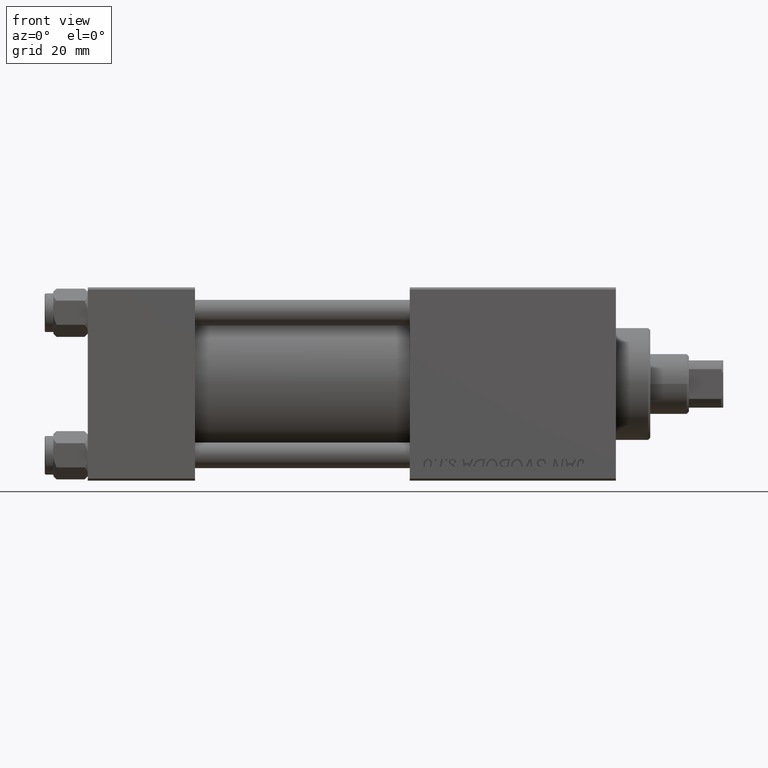
[diagram: clean part render]
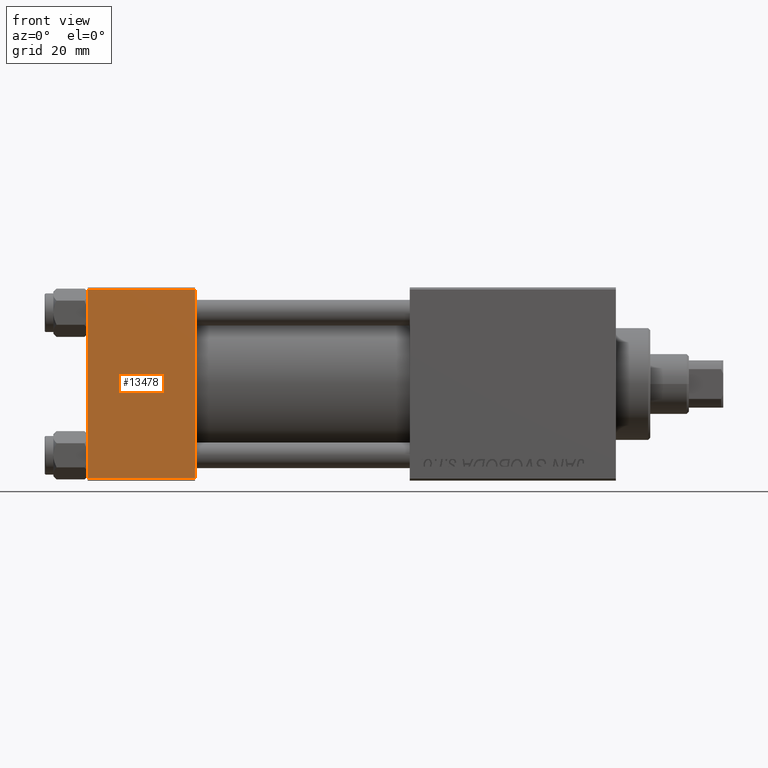
[diagram: same view with one face highlighted and labeled with its STEP entity id]
A machine part, front view. The second image highlights one B-rep face of the part: STEP entity #13478.
In plain terms, the highlighted planar face has unit normal (0, 1, 0).
Its self-contained STEP definition (entity closure, byte-faithful):
#27 = EDGE_CURVE ( 'NONE', #39036, #49846, #25813, .T. ) ;
#1740 = ORIENTED_EDGE ( 'NONE', *, *, #27, .T. ) ;
#2477 = VERTEX_POINT ( 'NONE', #43573 ) ;
#2906 = CARTESIAN_POINT ( 'NONE',  ( 25.00000000000000000, -22.50000000000000000, -21.99999999999998579 ) ) ;
#4102 = VECTOR ( 'NONE', #33981, 1000.000000000000000 ) ;
#4126 = LINE ( 'NONE', #18875, #27492 ) ;
#5416 = ORIENTED_EDGE ( 'NONE', *, *, #38959, .T. ) ;
#5588 = AXIS2_PLACEMENT_3D ( 'NONE', #15005, #38946, #30317 ) ;
#6017 = ORIENTED_EDGE ( 'NONE', *, *, #7852, .F. ) ;
#6522 = EDGE_CURVE ( 'NONE', #2477, #39036, #42817, .T. ) ;
#7852 = EDGE_CURVE ( 'NONE', #27355, #49846, #4126, .T. ) ;
#11505 = CARTESIAN_POINT ( 'NONE',  ( 0.000000000000000000, -22.50000000000000000, 22.50000000000000000 ) ) ;
#13478 = ADVANCED_FACE ( 'NONE', ( #22643 ), #38197, .F. ) ;
#13950 = CARTESIAN_POINT ( 'NONE',  ( 25.00000000000000000, -22.50000000000000000, 22.00000000000000000 ) ) ;
#15005 = CARTESIAN_POINT ( 'NONE',  ( 25.00000000000000000, -22.50000000000000000, 22.50000000000000000 ) ) ;
#17234 = CARTESIAN_POINT ( 'NONE',  ( 25.00000000000000000, -22.50000000000000000, -21.99999999999997158 ) ) ;
#18875 = CARTESIAN_POINT ( 'NONE',  ( 25.00000000000000000, -22.50000000000000000, 22.50000000000000000 ) ) ;
#19380 = DIRECTION ( 'NONE',  ( 0.000000000000000000, 0.000000000000000000, -1.000000000000000000 ) ) ;
#22643 = FACE_OUTER_BOUND ( 'NONE', #50095, .T. ) ;
#25813 = LINE ( 'NONE', #2906, #4102 ) ;
#26894 = CARTESIAN_POINT ( 'NONE',  ( 25.00000000000000000, -22.50000000000000000, 22.00000000000000000 ) ) ;
#27355 = VERTEX_POINT ( 'NONE', #26894 ) ;
#27492 = VECTOR ( 'NONE', #19380, 1000.000000000000000 ) ;
#29259 = LINE ( 'NONE', #13950, #41891 ) ;
#30317 = DIRECTION ( 'NONE',  ( 0.000000000000000000, -0.000000000000000000, 1.000000000000000000 ) ) ;
#30718 = VECTOR ( 'NONE', #46626, 1000.000000000000000 ) ;
#33981 = DIRECTION ( 'NONE',  ( 1.000000000000000000, 0.000000000000000000, 0.000000000000000000 ) ) ;
#34708 = ORIENTED_EDGE ( 'NONE', *, *, #6522, .T. ) ;
#38197 = PLANE ( 'NONE',  #5588 ) ;
#38946 = DIRECTION ( 'NONE',  ( -0.000000000000000000, 1.000000000000000000, 0.000000000000000000 ) ) ;
#38959 = EDGE_CURVE ( 'NONE', #27355, #2477, #29259, .T. ) ;
#39036 = VERTEX_POINT ( 'NONE', #40693 ) ;
#40693 = CARTESIAN_POINT ( 'NONE',  ( 0.000000000000000000, -22.50000000000000000, -21.99999999999997158 ) ) ;
#41891 = VECTOR ( 'NONE', #44769, 1000.000000000000000 ) ;
#42817 = LINE ( 'NONE', #11505, #30718 ) ;
#43573 = CARTESIAN_POINT ( 'NONE',  ( 0.000000000000000000, -22.50000000000000000, 22.00000000000000000 ) ) ;
#44769 = DIRECTION ( 'NONE',  ( -1.000000000000000000, 0.000000000000000000, 0.000000000000000000 ) ) ;
#46626 = DIRECTION ( 'NONE',  ( 0.000000000000000000, 0.000000000000000000, -1.000000000000000000 ) ) ;
#49846 = VERTEX_POINT ( 'NONE', #17234 ) ;
#50095 = EDGE_LOOP ( 'NONE', ( #34708, #1740, #6017, #5416 ) ) ;